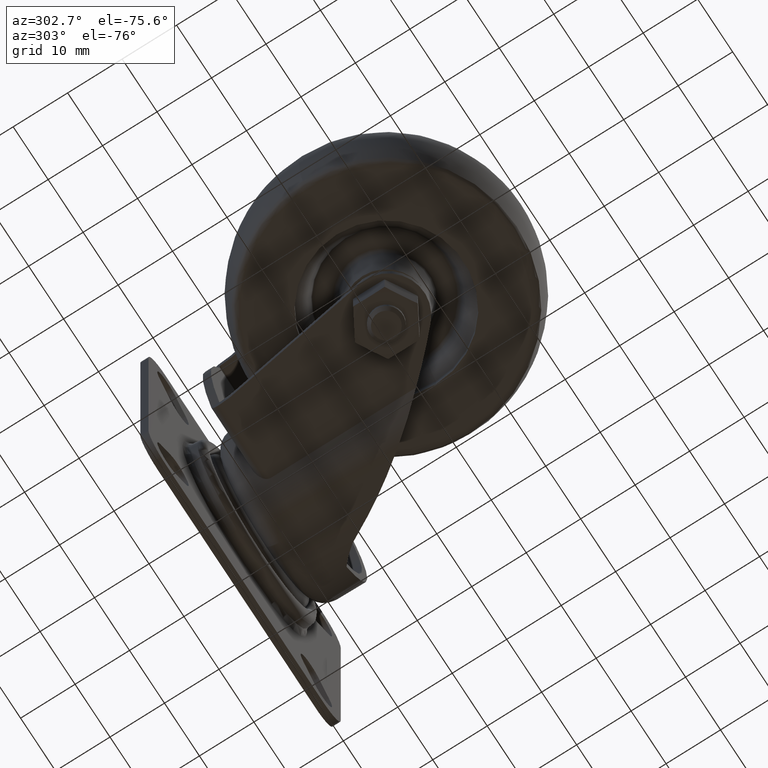
[diagram: clean part render]
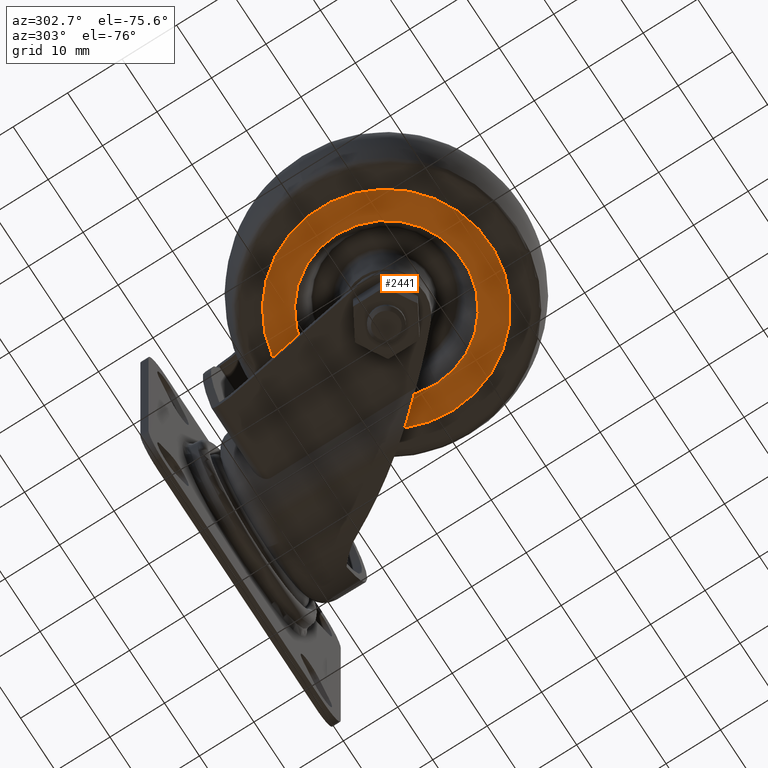
[diagram: same view with one face highlighted and labeled with its STEP entity id]
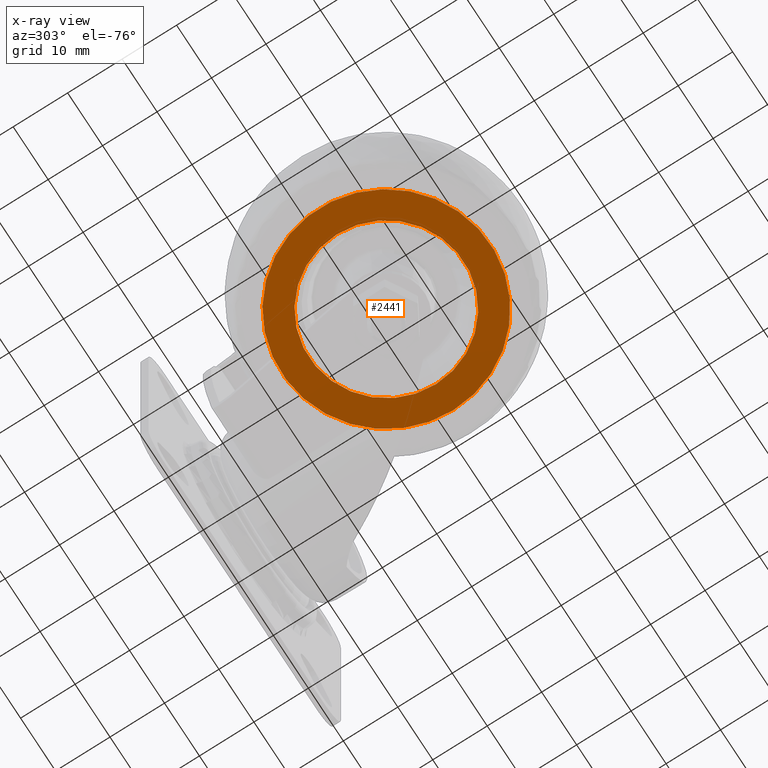
[diagram: x-ray of the same camera — body ghosted, the highlighted face saturated]
A machine part, auxiliary view. The second image highlights one B-rep face of the part: STEP entity #2441.
The next image is the same camera in x-ray: the body ghosted, the highlighted face saturated — about 0% of this face is hidden behind the body in this view.
In plain terms, the highlighted conical surface has half-angle 88.843 deg.
Its self-contained STEP definition (entity closure, byte-faithful):
#303=CONICAL_SURFACE('',#2633,19.1499999999996,88.8426669318689);
#394=FACE_BOUND('',#673,.T.);
#489=FACE_OUTER_BOUND('',#672,.T.);
#672=EDGE_LOOP('',(#1618));
#673=EDGE_LOOP('',(#1619));
#923=CIRCLE('',#2632,19.1499999999996);
#924=CIRCLE('',#2634,14.1999999999998);
#1070=VERTEX_POINT('',#3737);
#1071=VERTEX_POINT('',#3740);
#1294=EDGE_CURVE('',#1070,#1070,#923,.T.);
#1295=EDGE_CURVE('',#1071,#1071,#924,.T.);
#1618=ORIENTED_EDGE('',*,*,#1295,.T.);
#1619=ORIENTED_EDGE('',*,*,#1294,.F.);
#2441=ADVANCED_FACE('',(#489,#394),#303,.T.);
#2632=AXIS2_PLACEMENT_3D('',#3738,#2986,#2987);
#2633=AXIS2_PLACEMENT_3D('',#3739,#2988,#2989);
#2634=AXIS2_PLACEMENT_3D('',#3741,#2990,#2991);
#2986=DIRECTION('center_axis',(0.,0.,1.));
#2987=DIRECTION('ref_axis',(1.,0.,0.));
#2988=DIRECTION('center_axis',(0.,0.,1.));
#2989=DIRECTION('ref_axis',(1.,0.,0.));
#2990=DIRECTION('center_axis',(0.,0.,1.));
#2991=DIRECTION('ref_axis',(1.,0.,0.));
#3737=CARTESIAN_POINT('',(19.1499999999996,0.,-9.));
#3738=CARTESIAN_POINT('Origin',(0.,0.,-9.));
#3739=CARTESIAN_POINT('Origin',(0.,0.,-9.));
#3740=CARTESIAN_POINT('',(14.1999999999998,0.,-9.10000000000014));
#3741=CARTESIAN_POINT('Origin',(0.,0.,-9.10000000000014));